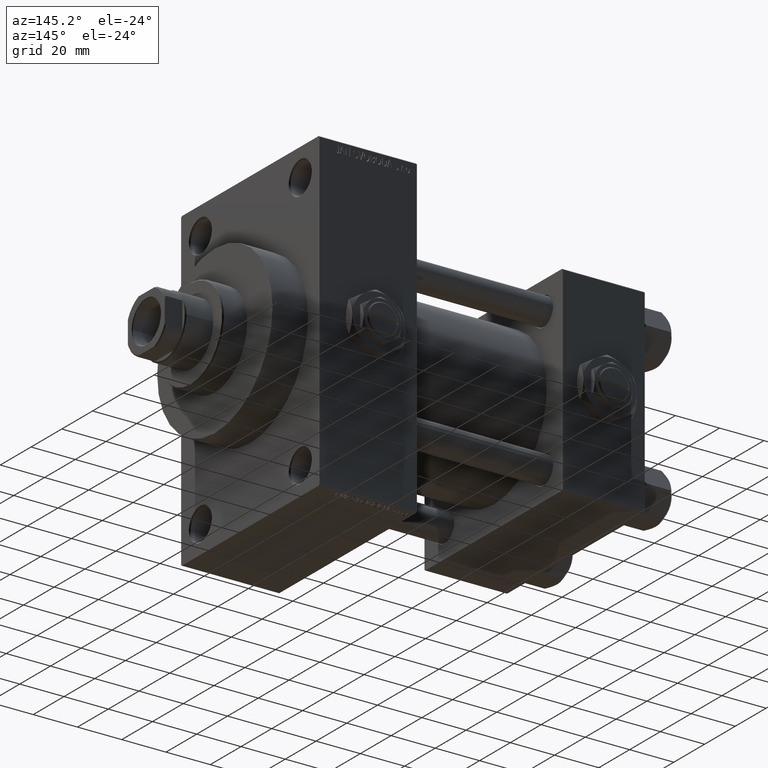
[diagram: clean part render]
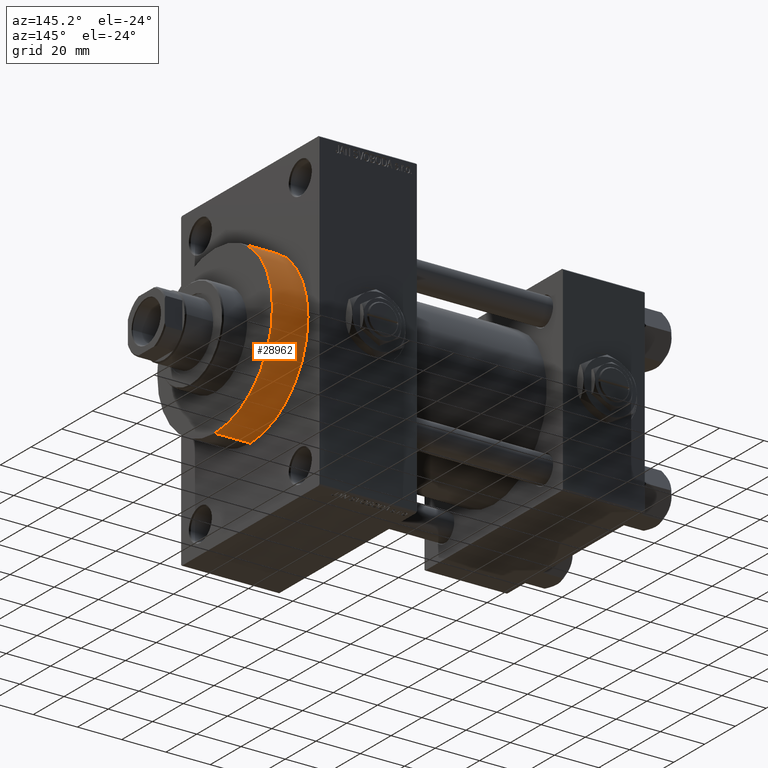
[diagram: same view with one face highlighted and labeled with its STEP entity id]
A machine part, auxiliary view. The second image highlights one B-rep face of the part: STEP entity #28962.
In plain terms, the highlighted cylindrical surface (partial cylindrical patch) has radius 37.5 mm, axis along (-1, -0, -0).
Its self-contained STEP definition (entity closure, byte-faithful):
#134 = DIRECTION ( 'NONE',  ( -1.000000000000000000, -0.000000000000000000, -0.000000000000000000 ) ) ;
#3581 = EDGE_CURVE ( 'NONE', #16763, #38375, #32841, .T. ) ;
#3901 = CARTESIAN_POINT ( 'NONE',  ( 147.0000000000000284, 0.000000000000000000, 0.000000000000000000 ) ) ;
#4730 = CARTESIAN_POINT ( 'NONE',  ( 163.0000000000000284, 4.592425496802575156E-15, -37.50000000000000711 ) ) ;
#6861 = FACE_OUTER_BOUND ( 'NONE', #47956, .T. ) ;
#8182 = AXIS2_PLACEMENT_3D ( 'NONE', #3901, #41765, #23053 ) ;
#9114 = DIRECTION ( 'NONE',  ( 0.000000000000000000, 0.000000000000000000, -1.000000000000000000 ) ) ;
#10507 = VERTEX_POINT ( 'NONE', #22829 ) ;
#13216 = VECTOR ( 'NONE', #35125, 1000.000000000000000 ) ;
#14241 = CARTESIAN_POINT ( 'NONE',  ( 147.0000000000000284, 0.000000000000000000, 37.50000000000000711 ) ) ;
#14406 = AXIS2_PLACEMENT_3D ( 'NONE', #34265, #134, #37767 ) ;
#15615 = CARTESIAN_POINT ( 'NONE',  ( 147.0000000000000284, 4.592425496802575156E-15, -37.50000000000000711 ) ) ;
#16763 = VERTEX_POINT ( 'NONE', #41335 ) ;
#17625 = CARTESIAN_POINT ( 'NONE',  ( 163.0000000000000284, 0.000000000000000000, 37.50000000000000711 ) ) ;
#18437 = CIRCLE ( 'NONE', #27174, 37.50000000000000711 ) ;
#22829 = CARTESIAN_POINT ( 'NONE',  ( 163.0000000000000284, 4.592425496802575156E-15, -37.50000000000000711 ) ) ;
#22963 = VERTEX_POINT ( 'NONE', #15615 ) ;
#23053 = DIRECTION ( 'NONE',  ( 0.000000000000000000, 0.000000000000000000, -1.000000000000000000 ) ) ;
#26336 = DIRECTION ( 'NONE',  ( -1.000000000000000000, -0.000000000000000000, -0.000000000000000000 ) ) ;
#27174 = AXIS2_PLACEMENT_3D ( 'NONE', #27319, #42525, #9114 ) ;
#27319 = CARTESIAN_POINT ( 'NONE',  ( 163.0000000000000284, 0.000000000000000000, 0.000000000000000000 ) ) ;
#28090 = CIRCLE ( 'NONE', #8182, 37.50000000000000711 ) ;
#28612 = ORIENTED_EDGE ( 'NONE', *, *, #36667, .T. ) ;
#28962 = ADVANCED_FACE ( 'NONE', ( #6861 ), #45489, .T. ) ;
#29715 = EDGE_CURVE ( 'NONE', #10507, #16763, #18437, .T. ) ;
#32841 = LINE ( 'NONE', #17625, #37985 ) ;
#32896 = ORIENTED_EDGE ( 'NONE', *, *, #43573, .T. ) ;
#34265 = CARTESIAN_POINT ( 'NONE',  ( 163.0000000000000284, 0.000000000000000000, 0.000000000000000000 ) ) ;
#35125 = DIRECTION ( 'NONE',  ( -1.000000000000000000, -0.000000000000000000, -0.000000000000000000 ) ) ;
#36667 = EDGE_CURVE ( 'NONE', #22963, #38375, #28090, .T. ) ;
#37767 = DIRECTION ( 'NONE',  ( 0.000000000000000000, 0.000000000000000000, 1.000000000000000000 ) ) ;
#37985 = VECTOR ( 'NONE', #26336, 1000.000000000000000 ) ;
#38375 = VERTEX_POINT ( 'NONE', #14241 ) ;
#38864 = LINE ( 'NONE', #4730, #13216 ) ;
#41335 = CARTESIAN_POINT ( 'NONE',  ( 163.0000000000000284, 0.000000000000000000, 37.50000000000000711 ) ) ;
#41765 = DIRECTION ( 'NONE',  ( 1.000000000000000000, 0.000000000000000000, 0.000000000000000000 ) ) ;
#42139 = ORIENTED_EDGE ( 'NONE', *, *, #29715, .F. ) ;
#42525 = DIRECTION ( 'NONE',  ( 1.000000000000000000, 0.000000000000000000, 0.000000000000000000 ) ) ;
#43573 = EDGE_CURVE ( 'NONE', #10507, #22963, #38864, .T. ) ;
#44434 = ORIENTED_EDGE ( 'NONE', *, *, #3581, .F. ) ;
#45489 = CYLINDRICAL_SURFACE ( 'NONE', #14406, 37.50000000000000711 ) ;
#47956 = EDGE_LOOP ( 'NONE', ( #42139, #32896, #28612, #44434 ) ) ;